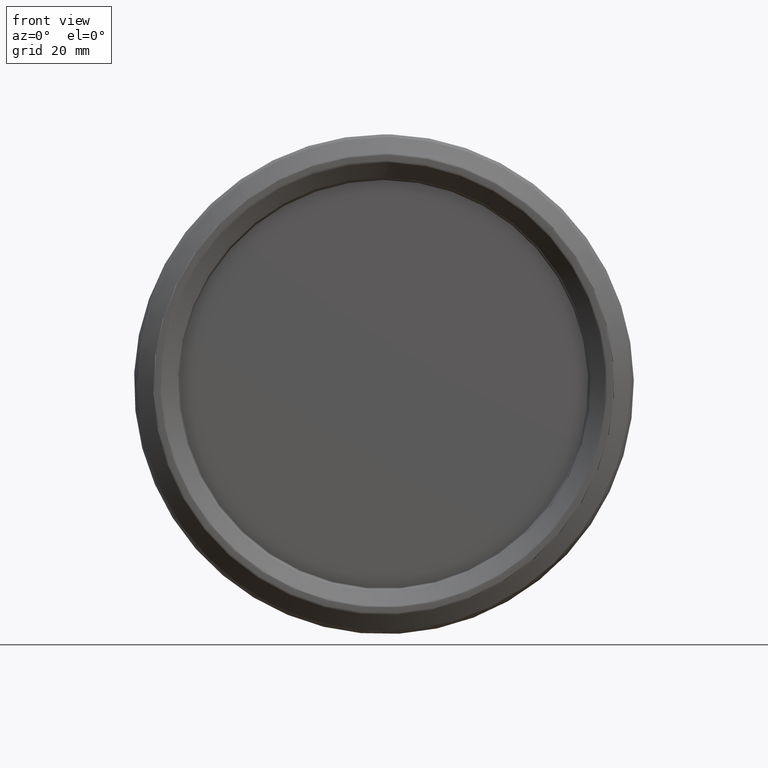
[diagram: clean part render]
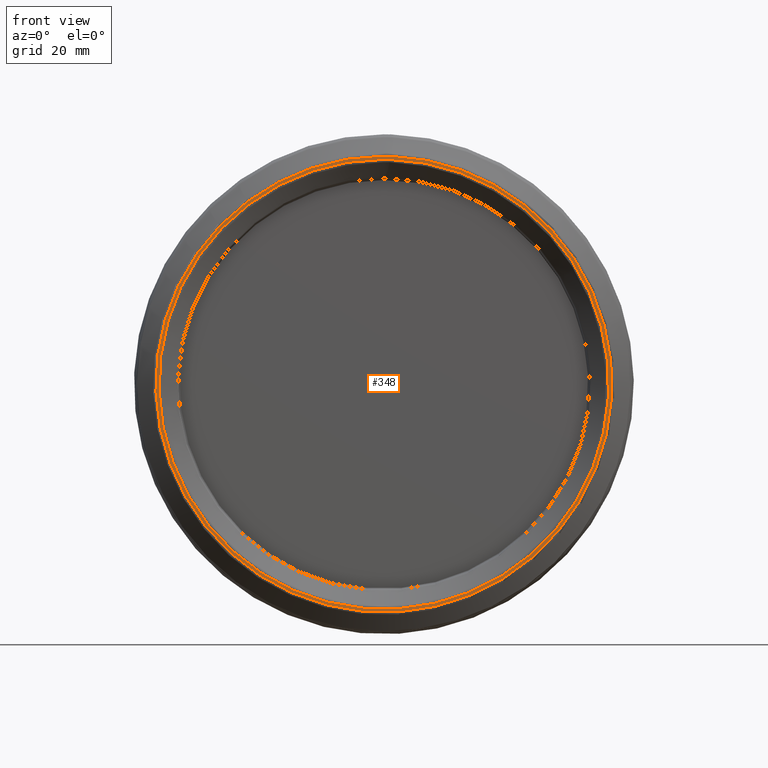
[diagram: same view with one face highlighted and labeled with its STEP entity id]
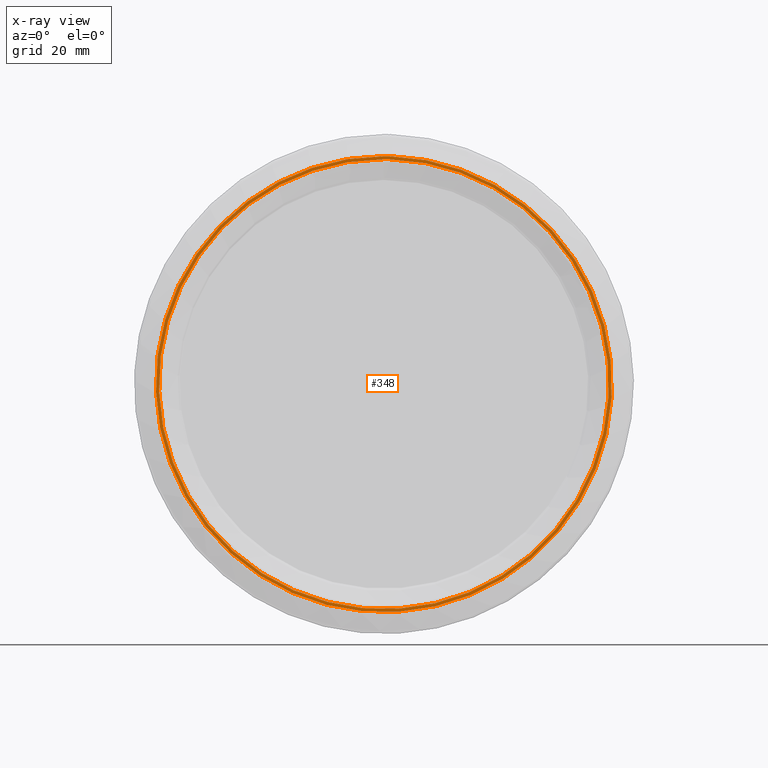
[diagram: x-ray of the same camera — body ghosted, the highlighted face saturated]
A machine part, front view. The second image highlights one B-rep face of the part: STEP entity #348.
The next image is the same camera in x-ray: the body ghosted, the highlighted face saturated — about 0% of this face is hidden behind the body in this view.
In plain terms, the highlighted face is a SurfaceOfRevolution surface.
Its self-contained STEP definition (entity closure, byte-faithful):
#108=SURFACE_OF_REVOLUTION('',#236,#129);
#129=AXIS1_PLACEMENT('',#1852,#1336);
#236=B_SPLINE_CURVE_WITH_KNOTS('',3,(#1847,#1848,#1849,#1850,#1851),
 .UNSPECIFIED.,.F.,.F.,(4,1,4),(0.,0.499999999926144,1.),.UNSPECIFIED.);
#348=ADVANCED_FACE('',(#427,#428),#108,.T.);
#427=FACE_BOUND('',#534,.T.);
#428=FACE_BOUND('',#535,.T.);
#534=EDGE_LOOP('',(#750));
#535=EDGE_LOOP('',(#751));
#750=ORIENTED_EDGE('',*,*,#963,.F.);
#751=ORIENTED_EDGE('',*,*,#962,.T.);
#854=VERTEX_POINT('',#1839);
#855=VERTEX_POINT('',#1846);
#962=EDGE_CURVE('',#854,#854,#1018,.T.);
#963=EDGE_CURVE('',#855,#855,#1019,.T.);
#1018=CIRCLE('',#1118,74.670801261312);
#1019=CIRCLE('',#1119,75.70554341925);
#1118=AXIS2_PLACEMENT_3D('',#1838,#1331,#1332);
#1119=AXIS2_PLACEMENT_3D('',#1845,#1334,#1335);
#1331=DIRECTION('',(0.,1.,0.));
#1332=DIRECTION('',(0.,0.,1.));
#1334=DIRECTION('',(0.,1.,0.));
#1335=DIRECTION('',(0.,0.,1.));
#1336=DIRECTION('',(0.,1.,0.));
#1838=CARTESIAN_POINT('',(0.,-0.000338751119678152,0.));
#1839=CARTESIAN_POINT('',(0.,-0.000338751119678152,74.670801261312));
#1845=CARTESIAN_POINT('',(0.,-0.0104979109588672,0.));
#1846=CARTESIAN_POINT('',(0.,-0.0104979109588672,75.70554341925));
#1847=CARTESIAN_POINT('',(73.7934153828917,-0.000338751119678152,11.4131681462404));
#1848=CARTESIAN_POINT('',(73.9677072421706,-0.00621983300076119,11.4235933183477));
#1849=CARTESIAN_POINT('',(74.3168975759183,-0.0149688896284421,11.4337607950413));
#1850=CARTESIAN_POINT('',(74.6661629059816,-0.01299643468458,11.4226409290942));
#1851=CARTESIAN_POINT('',(74.8405069874903,-0.0104979109588672,11.4117403694339));
#1852=CARTESIAN_POINT('',(0.,0.,0.));